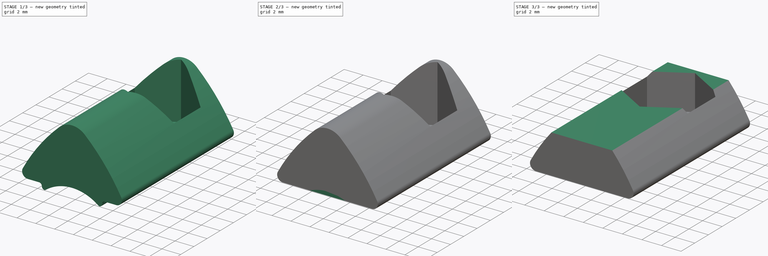
[diagram: build sequence overview — one tinted view per stage of 3, left to right]
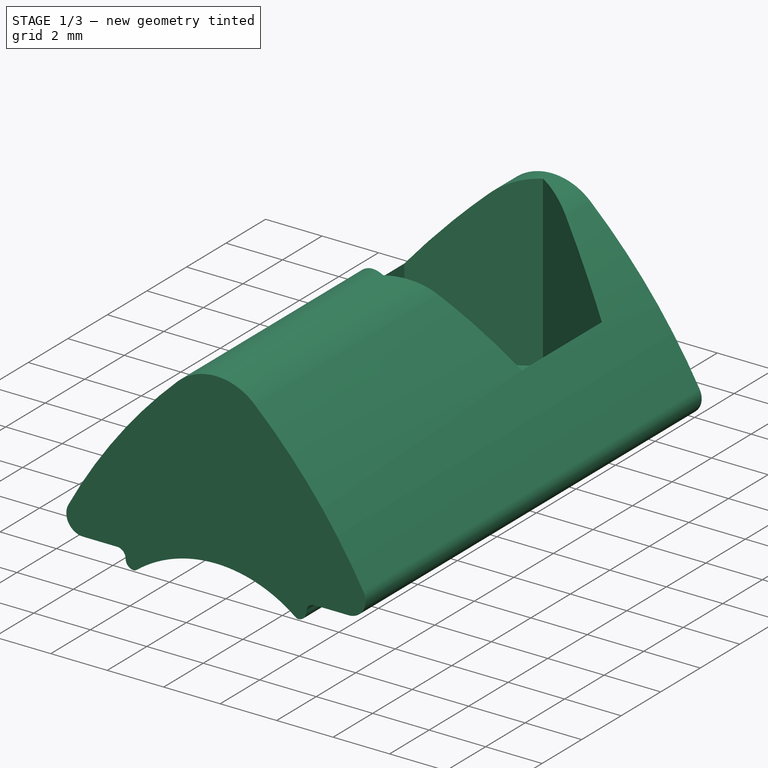
[diagram: stage 1 of 3 — iso view after this stage's code; geometry added in this stage tinted green]
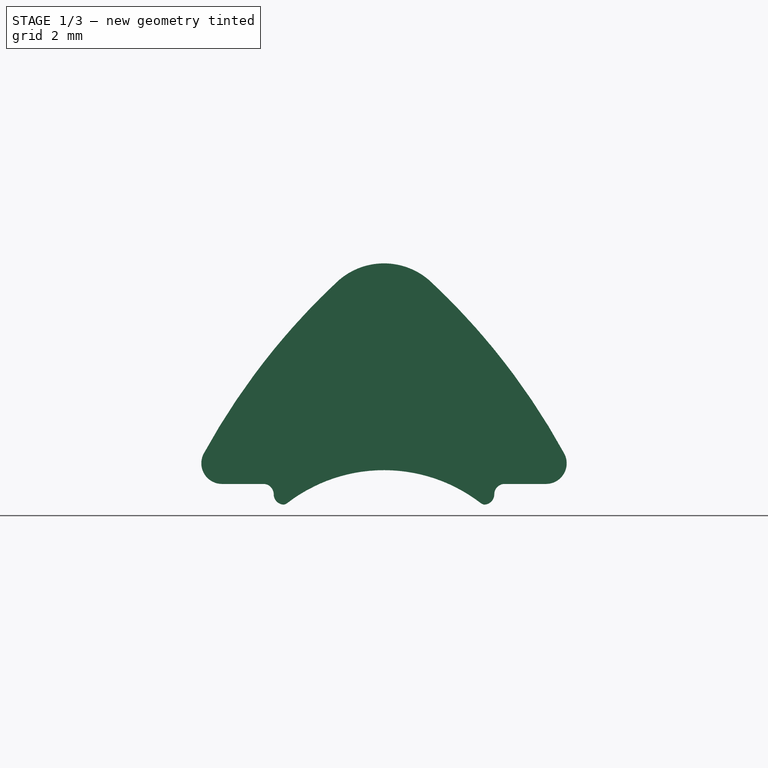
[diagram: stage 1 of 3 — front view after this stage's code; geometry added in this stage tinted green]
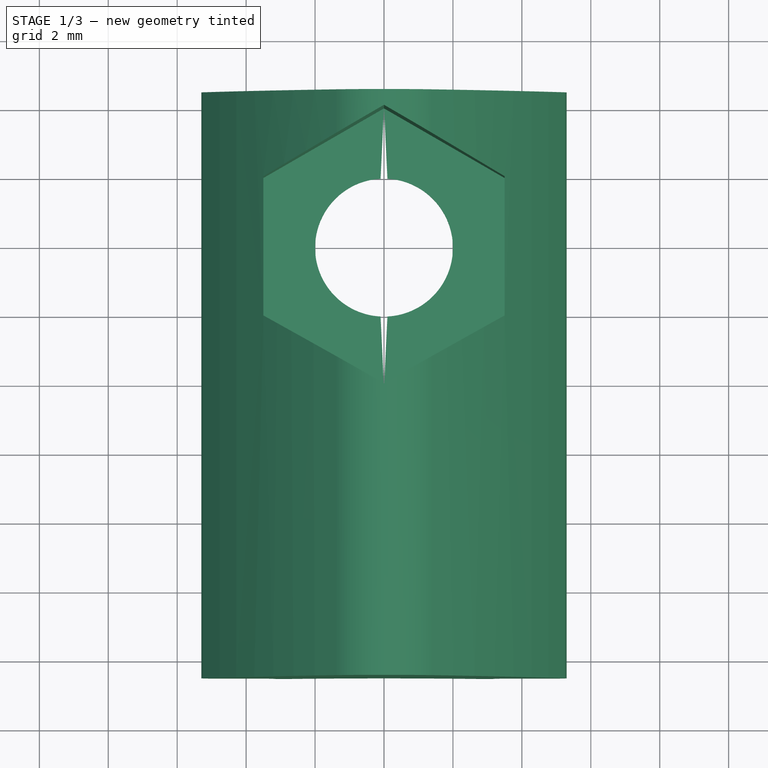
[diagram: stage 1 of 3 — top view after this stage's code; geometry added in this stage tinted green]
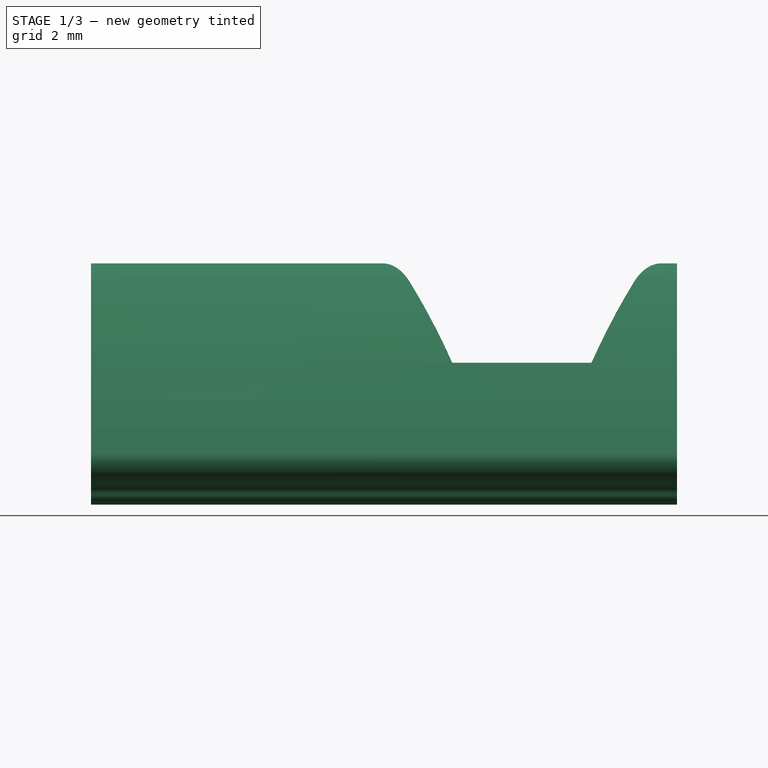
[diagram: stage 1 of 3 — right view after this stage's code; geometry added in this stage tinted green]
FCSTD DOCUMENT  (FreeCAD 0.20R)
Label: tslotNut6_M4
License: All rights reserved
LicenseURL: http://en.wikipedia.org/wiki/All_rights_reserved
objects: Sketcher::SketchObject×5, PartDesign::Pocket×4, App::DocumentObjectGroup×2, Part::Feature×1, PartDesign::FeatureBase×1, PartDesign::Plane×1, Part::FeaturePython×1, PartDesign::SubShapeBinder×1, PartDesign::Pad×1, PartDesign::Body×1
note: 21 computed .brp shape members not serialized (recipe doc carries the construction recipe); baked Part::Feature solids carry a one-line shape summary decoded from their .brp

FEATURE [Part::Feature] Part__Feature  label="item_0041946_Wpust przesuwny 6 St M4"
  shape: bbox 10.6 x 17 x 7 mm, 22 faces (baked)
FEATURE [PartDesign::FeatureBase] BaseFeature
  BaseFeature = -> Part__Feature
FEATURE [PartDesign::Plane] DatumPlane
  AttachmentOffset = pos=(0,0,0) rot=(1,0,0;1.5708rad)
  Length = 60
  MapMode = 7
  Placement = pos=(-1.28839e-11,2,6.4) rot=(1,0,0;3.14159rad)
  ResizeMode = 0
  Support = -> [BaseFeature]
  Width = 60
FEATURE [Part::FeaturePython] NPointsPoint_P  # WARN: FeaturePython — macro-defined, semantics opaque (R4)
  Parametric = 0
  Points = -> [BaseFeature]
  X = -2.05452e-11
  Y = 0
  Z = 0.4
FEATURE [App::DocumentObjectGroup] WorkPoints_P
  Group = -> [NPointsPoint_P]
FEATURE [App::DocumentObjectGroup] WorkFeatures
  Group = -> [WorkPoints_P]
FEATURE [PartDesign::SubShapeBinder] Binder
  BindCopyOnChange = 0
  BindMode = 0
  ClaimChildren = false
  Context = -> Body [Binder.]
  Fuse = false
  MakeFace = true
  OffsetFill = false
  OffsetIntersection = false
  OffsetJoinType = 0
  OffsetOpenResult = false
  PartialLoad = false
  Relative = true
  Support = -> [NPointsPoint_P[Vertex1]]
  _Version = 2
FEATURE [Sketcher::SketchObject] Sketch
  ExternalGeometry = -> [Binder]
  FullyConstrained = true
  MapMode = 5
  Placement = pos=(-1.28839e-11,2,6.4) rot=(0,0,1;3.14159rad)
  Support = -> [DatumPlane]
  sketch-geometry (7):
    g0: LineSegment StartX=3.5 StartY=4.02073 StartZ=0 EndX=7.6605e-12 EndY=6.04145 EndZ=0
    g1: LineSegment StartX=7.6605e-12 StartY=6.04145 StartZ=0 EndX=-3.5 EndY=4.02073 EndZ=0
    g2: LineSegment StartX=-3.5 StartY=4.02073 StartZ=0 EndX=-3.5 EndY=-0.0207259 EndZ=0
    g3: LineSegment StartX=-3.5 StartY=-0.0207259 StartZ=0 EndX=7.6614e-12 EndY=-2.04145 EndZ=0
    g4: LineSegment StartX=7.6614e-12 StartY=-2.04145 StartZ=0 EndX=3.5 EndY=-0.0207259 EndZ=0
    g5: LineSegment StartX=3.5 StartY=-0.0207259 StartZ=0 EndX=3.5 EndY=4.02073 EndZ=0
    g6: Circle CenterX=7.6613e-12 CenterY=2 CenterZ=0 NormalX=0 NormalY=0 NormalZ=1 AngleXU=0 Radius=4.04145
  constraints (16):
    c: Coincident(g0,g1)
    c: Coincident(g1,g2)
    c: Coincident(g2,g3)
    c: Coincident(g3,g4)
    c: Coincident(g4,g5)
    c: Coincident(g5,g0)
    c: Equal(g0, g1-g5) x5
    c: PointOnObject(g0,g6)
    c: PointOnObject(g1,g6)
    c: PointOnObject(g2,g6)
    c: PointOnObject(g3,g6)
    c: PointOnObject(g4,g6)
    c: PointOnObject(g5,g6)
    c: Coincident(g6,g-3)
    c: Vertical(g2)
    c: DistanceX(g1,g0) = 7
FEATURE [PartDesign::Pocket] Pocket
  BaseFeature = -> BaseFeature
  Direction = (0,-4e-16,-1)
  Length = 6
  Length2 = 5
  Profile = -> Sketch
  ReferenceAxis = -> Sketch [N_Axis]
  Type = 0
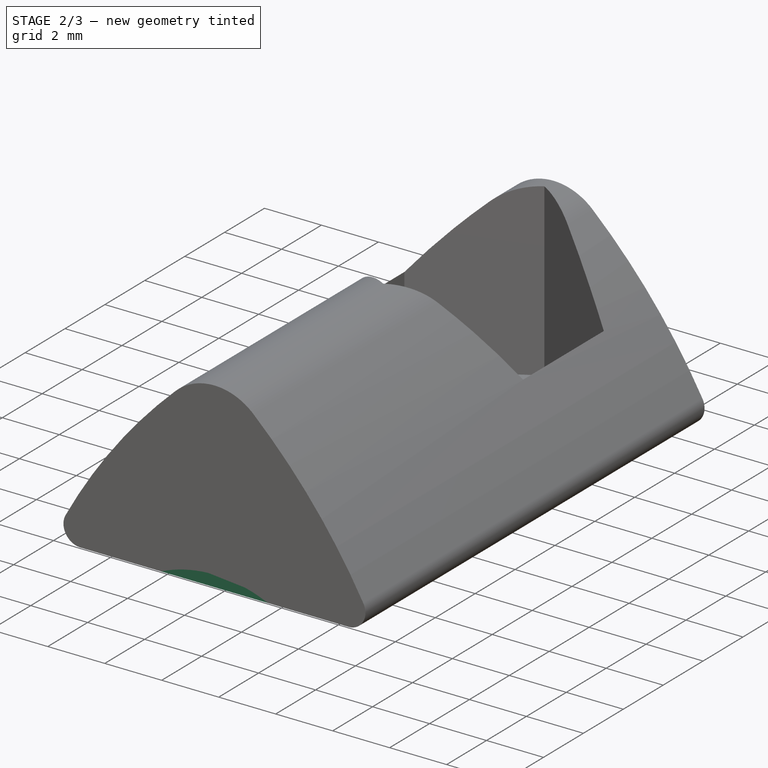
[diagram: stage 2 of 3 — iso view after this stage's code; geometry added in this stage tinted green]
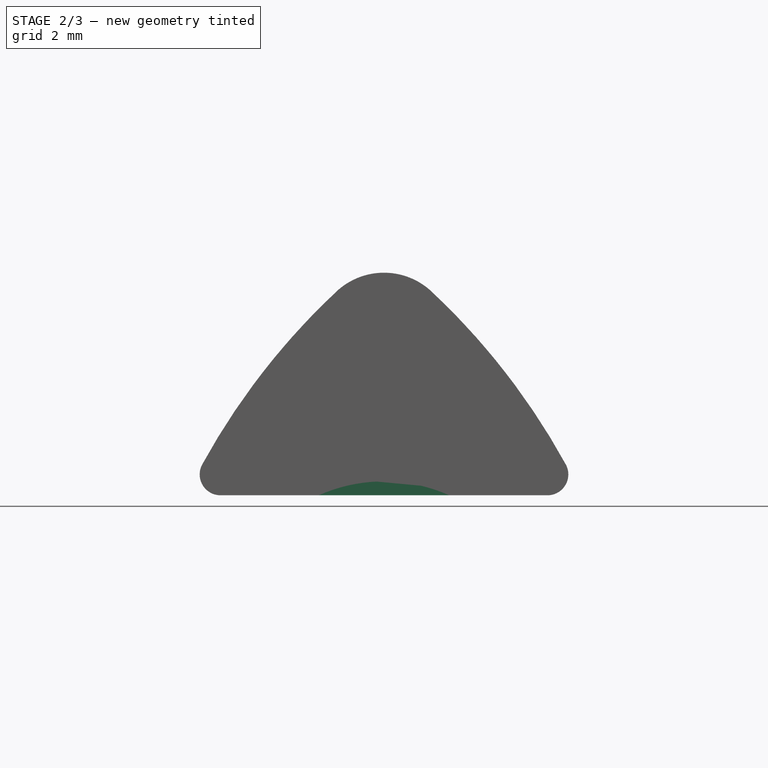
[diagram: stage 2 of 3 — front view after this stage's code; geometry added in this stage tinted green]
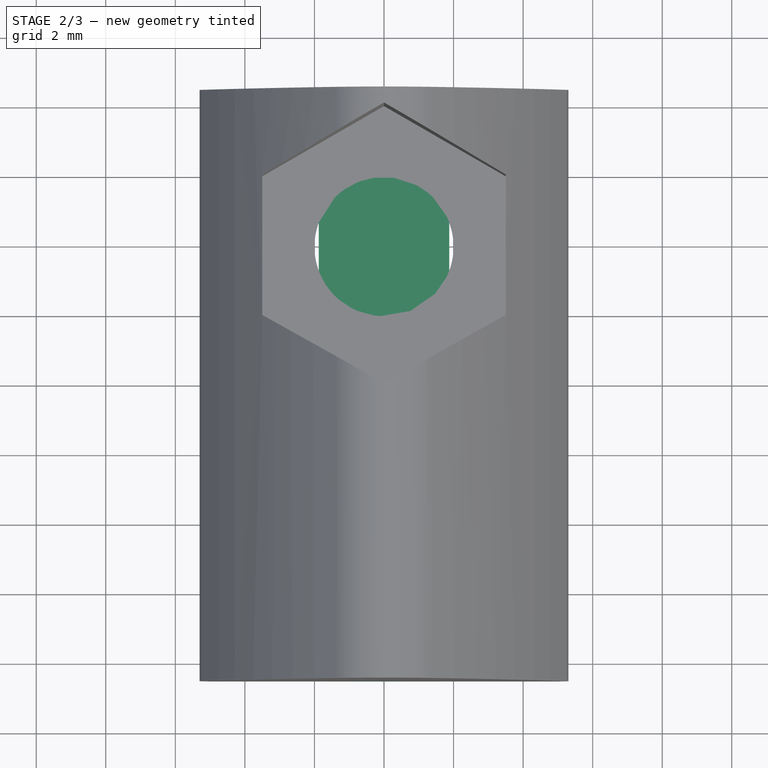
[diagram: stage 2 of 3 — top view after this stage's code; geometry added in this stage tinted green]
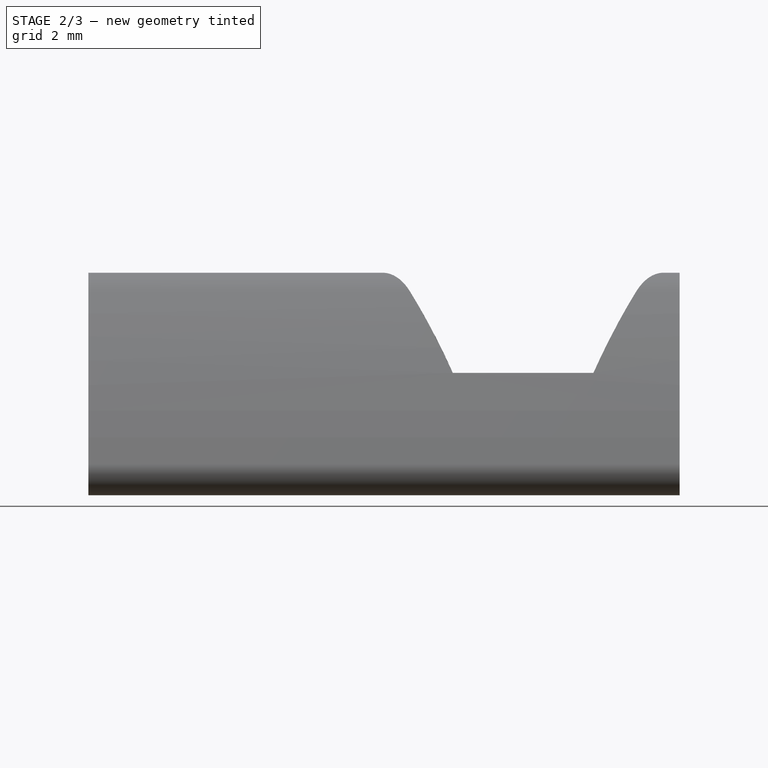
[diagram: stage 2 of 3 — right view after this stage's code; geometry added in this stage tinted green]
FEATURE [Sketcher::SketchObject] Sketch001
  ExternalGeometry = -> [Pocket]
  FullyConstrained = true
  MapMode = 5
  Placement = pos=(0,4.5,0) rot=(0,0.707107,0.707107;3.14159rad)
  Support = -> [Pocket]
  sketch-geometry (4):
    g0: LineSegment StartX=-4.7 StartY=-3e-08 StartZ=0 EndX=4.7 EndY=-3e-08 EndZ=0
    g1: LineSegment StartX=4.7 StartY=-3e-08 StartZ=0 EndX=4.7 EndY=-2 EndZ=0
    g2: LineSegment StartX=4.7 StartY=-2 StartZ=0 EndX=-4.7 EndY=-2 EndZ=0
    g3: LineSegment StartX=-4.7 StartY=-2 StartZ=0 EndX=-4.7 EndY=-3e-08 EndZ=0
  constraints (11):
    c: Coincident(g0,g1)
    c: Coincident(g1,g2)
    c: Coincident(g2,g3)
    c: Coincident(g3,g0)
    c: Horizontal(g0)
    c: Horizontal(g2)
    c: Vertical(g1)
    c: Vertical(g3)
    c: Coincident(g0,g-3)
    c: PointOnObject(g-4,g1)
    c: DistanceY(g1,g1) = 2
FEATURE [PartDesign::Pocket] Pocket001
  BaseFeature = -> Pocket
  Direction = (0,-1,2e-16)
  Length = 5
  Length2 = 5
  Profile = -> Sketch001
  ReferenceAxis = -> Sketch001 [N_Axis]
  Type = 1
FEATURE [Sketcher::SketchObject] Sketch002
  ExternalGeometry = -> [Pocket001]
  FullyConstrained = true
  MapMode = 5
  Placement = pos=(0,4.5,0) rot=(0,0.707107,0.707107;3.14159rad)
  Support = -> [Pocket001]
  sketch-geometry (4):
    g0: LineSegment StartX=-1.87617 StartY=-3.00001e-08 StartZ=0 EndX=1.87617 EndY=-3.00001e-08 EndZ=0
    g1: LineSegment StartX=1.87617 StartY=-3.00001e-08 StartZ=0 EndX=1.87617 EndY=0.4 EndZ=0
    g2: LineSegment StartX=1.87617 StartY=0.4 StartZ=0 EndX=-1.87617 EndY=0.4 EndZ=0
    g3: LineSegment StartX=-1.87617 StartY=0.4 StartZ=0 EndX=-1.87617 EndY=-3.00001e-08 EndZ=0
  constraints (11):
    c: Coincident(g0,g1)
    c: Coincident(g1,g2)
    c: Coincident(g2,g3)
    c: Coincident(g3,g0)
    c: Horizontal(g0)
    c: Horizontal(g2)
    c: Vertical(g1)
    c: Vertical(g3)
    c: Coincident(g0,g-3)
    c: PointOnObject(g-4,g1)
    c: PointOnObject(g-4,g2)
FEATURE [PartDesign::Pad] Pad
  BaseFeature = -> Pocket001
  Direction = (0,1,-2e-16)
  Length = 10
  Length2 = 10
  Profile = -> Sketch002
  ReferenceAxis = -> Sketch002 [N_Axis]
  Reversed = true
  Type = 3
  UpToFace = -> Pocket001 [Face12]
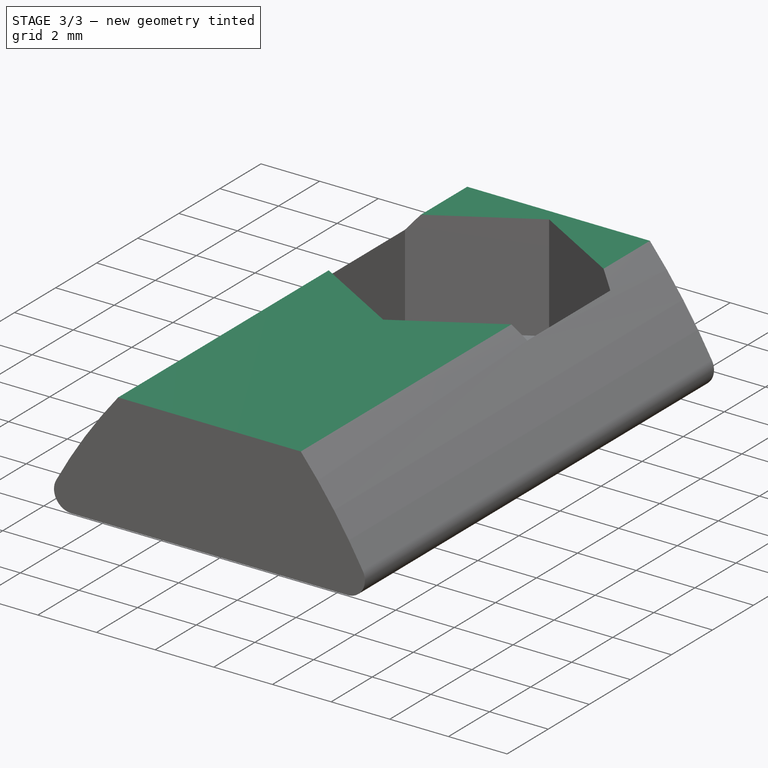
[diagram: stage 3 of 3 — iso view after this stage's code; geometry added in this stage tinted green]
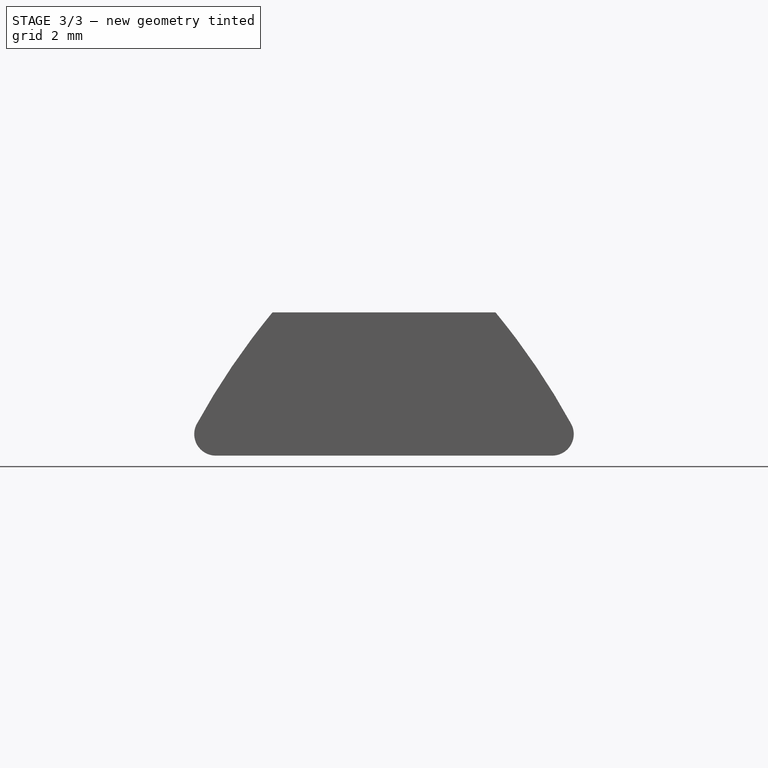
[diagram: stage 3 of 3 — front view after this stage's code; geometry added in this stage tinted green]
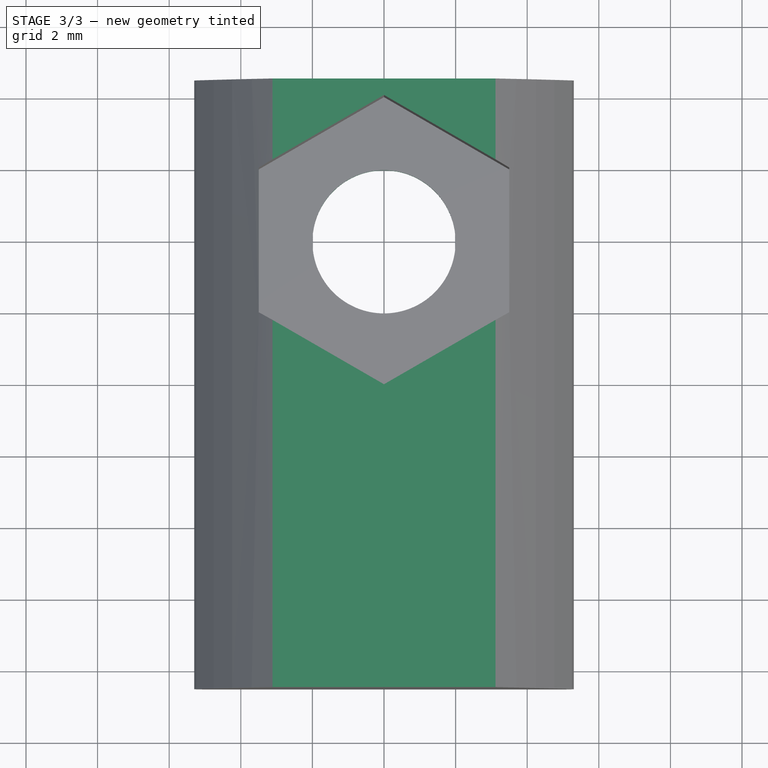
[diagram: stage 3 of 3 — top view after this stage's code; geometry added in this stage tinted green]
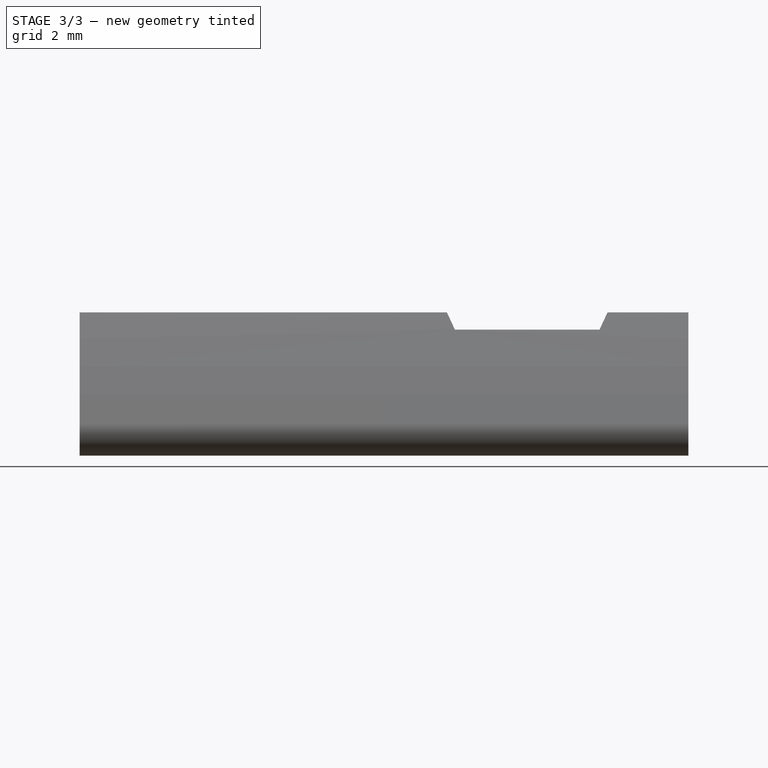
[diagram: stage 3 of 3 — right view after this stage's code; geometry added in this stage tinted green]
FEATURE [Sketcher::SketchObject] Sketch003
  ExternalGeometry = -> [Pad]
  FullyConstrained = true
  MapMode = 5
  Placement = pos=(0,0,-3.00001e-08) rot=(1,0,0;3.14159rad)
  Support = -> [Pad]
  sketch-geometry (1):
    g0: Circle CenterX=0 CenterY=0 CenterZ=0 NormalX=0 NormalY=0 NormalZ=1 AngleXU=0 Radius=2
  constraints (2):
    c: Coincident(g0,g-3)
    c: PointOnObject(g-3,g0)
FEATURE [PartDesign::Pocket] Pocket002
  BaseFeature = -> Pad
  Direction = (0,2e-16,1)
  Length = 5
  Length2 = 5
  Profile = -> Sketch003
  ReferenceAxis = -> Sketch003 [N_Axis]
  Type = 1
FEATURE [Sketcher::SketchObject] Sketch004
  ExternalGeometry = -> [Pocket002]
  FullyConstrained = true
  MapMode = 5
  Placement = pos=(0,4.5,0) rot=(0,0.707107,0.707107;3.14159rad)
  Support = -> [Pocket002]
  sketch-geometry (4):
    g0: LineSegment StartX=-5.3 StartY=7 StartZ=0 EndX=5.3 EndY=7 EndZ=0
    g1: LineSegment StartX=5.3 StartY=7 StartZ=0 EndX=5.3 EndY=4 EndZ=0
    g2: LineSegment StartX=5.3 StartY=4 StartZ=0 EndX=-5.3 EndY=4 EndZ=0
    g3: LineSegment StartX=-5.3 StartY=4 StartZ=0 EndX=-5.3 EndY=7 EndZ=0
  constraints (12):
    c: Coincident(g0,g1)
    c: Coincident(g1,g2)
    c: Coincident(g2,g3)
    c: Coincident(g3,g0)
    c: Horizontal(g0)
    c: Horizontal(g2)
    c: Vertical(g1)
    c: Vertical(g3)
    c: Tangent(g1,g-5)
    c: Tangent(g3,g-4)
    c: DistanceY(g-3,g2) = 4
    c: DistanceY(g3,g3) = 3
FEATURE [PartDesign::Pocket] Pocket003
  BaseFeature = -> Pocket002
  Direction = (0,-1,2e-16)
  Length = 5
  Length2 = 5
  Profile = -> Sketch004
  ReferenceAxis = -> Sketch004 [N_Axis]
  Type = 1
FEATURE [PartDesign::Body] Body
  BaseFeature = -> Part__Feature
  Group = -> [BaseFeature,DatumPlane,Binder,Sketch,Pocket,Sketch001,Pocket001,Sketch002,Pad,Sketch003,Pocket002,Sketch004,Pocket003]
  Origin = -> Origin
  Tip = -> Pocket003
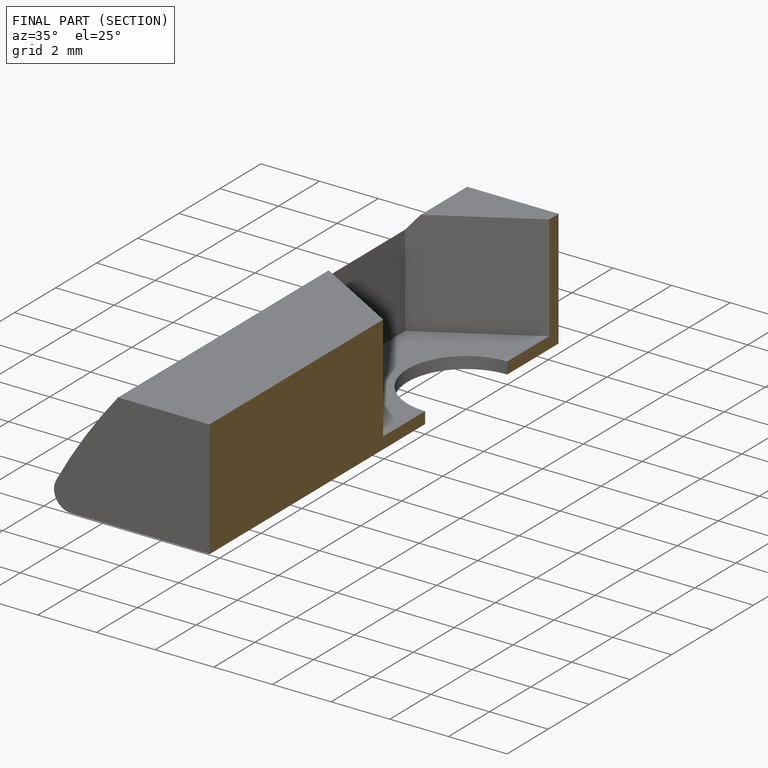
[diagram: finished part — half-section view (interior)]
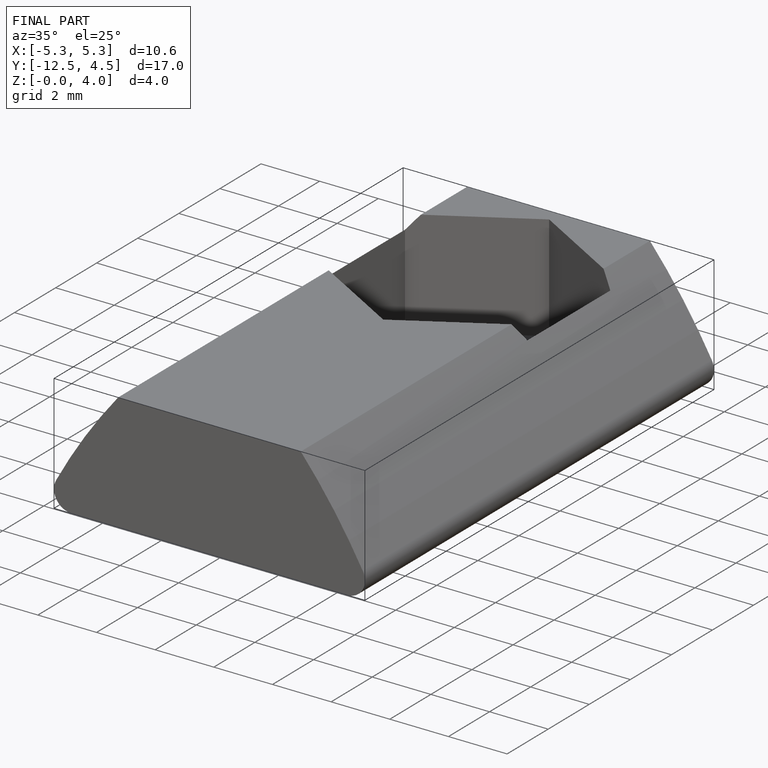
[diagram: finished part — iso view with bounding-box wireframe]
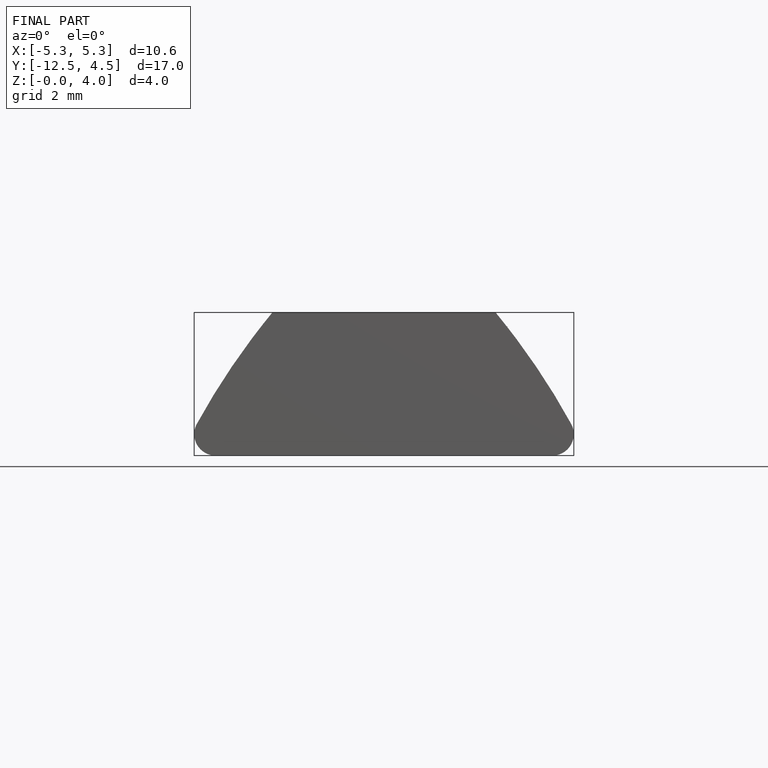
[diagram: finished part — front view with bounding-box wireframe]
